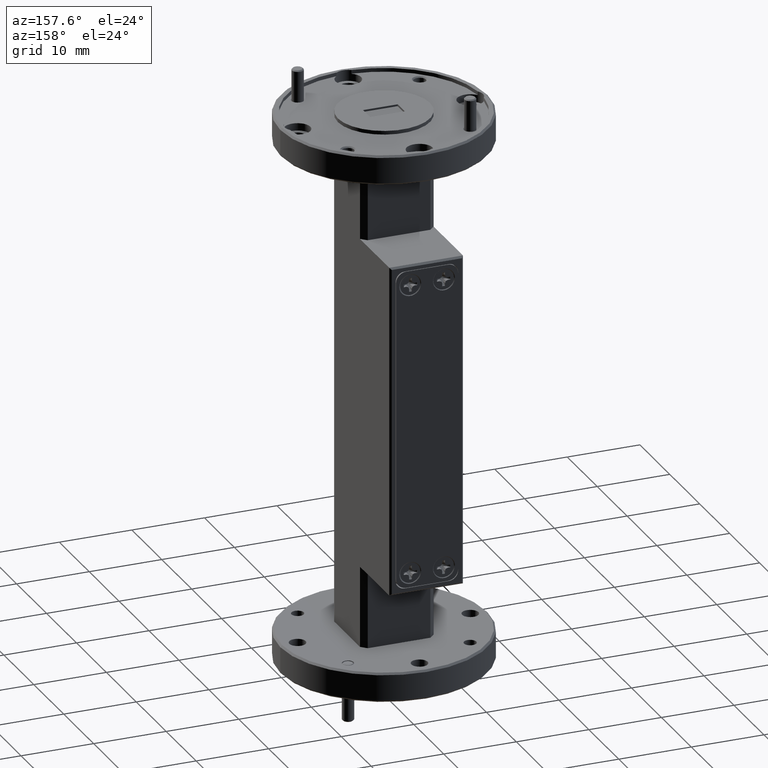
[diagram: clean part render]
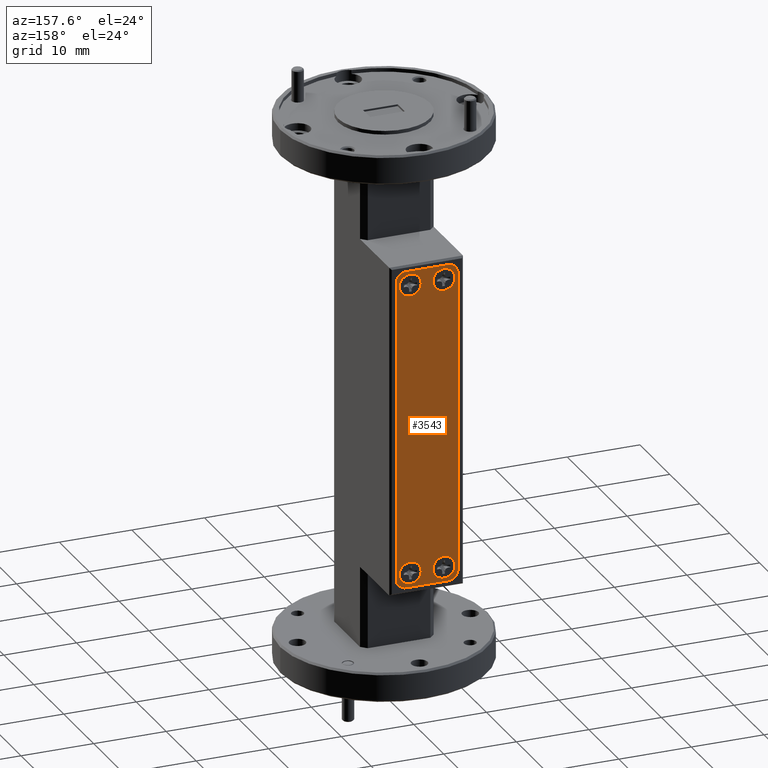
[diagram: same view with one face highlighted and labeled with its STEP entity id]
A machine part, auxiliary view. The second image highlights one B-rep face of the part: STEP entity #3543.
In plain terms, the highlighted planar face has unit normal (-0, -1, -0).
Its self-contained STEP definition (entity closure, byte-faithful):
#32 = ORIENTED_EDGE ( 'NONE', *, *, #181, .F. ) ;
#174 = DIRECTION ( 'NONE',  ( -8.683306935269171612E-17, -1.000000000000000000, -2.547280781376808225E-17 ) ) ;
#181 = EDGE_CURVE ( 'NONE', #2717, #3693, #5080, .T. ) ;
#207 = CIRCLE ( 'NONE', #7237, 0.05949999999999996264 ) ;
#353 = DIRECTION ( 'NONE',  ( 1.000000000000000000, 0.000000000000000000, 0.000000000000000000 ) ) ;
#445 = VERTEX_POINT ( 'NONE', #8191 ) ;
#451 = CARTESIAN_POINT ( 'NONE',  ( -0.1694999999999998452, 0.5649999999999999467, -0.8679999999999992166 ) ) ;
#635 = DIRECTION ( 'NONE',  ( 8.683306935269165449E-17, 1.000000000000000000, 2.547280781376808225E-17 ) ) ;
#646 = EDGE_LOOP ( 'NONE', ( #940, #6936 ) ) ;
#905 = CIRCLE ( 'NONE', #7623, 0.05949999999999997652 ) ;
#940 = ORIENTED_EDGE ( 'NONE', *, *, #1278, .F. ) ;
#1038 = CIRCLE ( 'NONE', #1995, 0.05949999999999996264 ) ;
#1073 = AXIS2_PLACEMENT_3D ( 'NONE', #8451, #6050, #4490 ) ;
#1130 = DIRECTION ( 'NONE',  ( -1.000000000000000000, 8.683306935269172844E-17, -6.635646262502135868E-33 ) ) ;
#1131 = EDGE_CURVE ( 'NONE', #445, #3798, #4850, .T. ) ;
#1148 = FACE_BOUND ( 'NONE', #2577, .T. ) ;
#1278 = EDGE_CURVE ( 'NONE', #3294, #2873, #207, .T. ) ;
#1301 = DIRECTION ( 'NONE',  ( 8.683306935269165449E-17, 1.000000000000000000, 2.547280781376808225E-17 ) ) ;
#1351 = CARTESIAN_POINT ( 'NONE',  ( 0.08999999999999976075, 0.5649999999999999467, -0.7899999999999989253 ) ) ;
#1378 = EDGE_CURVE ( 'NONE', #6566, #2669, #5796, .T. ) ;
#1410 = CARTESIAN_POINT ( 'NONE',  ( 0.08999999999999994116, 0.5649999999999999467, 0.7899999999999992584 ) ) ;
#1428 = VERTEX_POINT ( 'NONE', #5455 ) ;
#1436 = DIRECTION ( 'NONE',  ( -1.000000000000000000, 0.000000000000000000, 0.000000000000000000 ) ) ;
#1449 = EDGE_CURVE ( 'NONE', #2669, #1428, #5497, .T. ) ;
#1481 = ORIENTED_EDGE ( 'NONE', *, *, #1449, .T. ) ;
#1605 = DIRECTION ( 'NONE',  ( 8.683306935269165449E-17, 1.000000000000000000, 2.547280781376808225E-17 ) ) ;
#1623 = DIRECTION ( 'NONE',  ( 1.000000000000000000, 0.000000000000000000, 0.000000000000000000 ) ) ;
#1627 = CARTESIAN_POINT ( 'NONE',  ( -0.1144999999999999907, 0.5649999999999999467, 0.8129999999999989457 ) ) ;
#1678 = CARTESIAN_POINT ( 'NONE',  ( -0.1525000000000000522, 0.5649999999999999467, 0.7899999999999992584 ) ) ;
#1809 = ORIENTED_EDGE ( 'NONE', *, *, #9643, .T. ) ;
#1841 = AXIS2_PLACEMENT_3D ( 'NONE', #4963, #6320, #353 ) ;
#1896 = EDGE_LOOP ( 'NONE', ( #6884, #2664 ) ) ;
#1903 = VECTOR ( 'NONE', #7023, 39.37007874015748143 ) ;
#1909 = DIRECTION ( 'NONE',  ( 8.683306935269165449E-17, 1.000000000000000000, 2.547280781376808225E-17 ) ) ;
#1926 = CARTESIAN_POINT ( 'NONE',  ( 0.1494999999999997164, 0.5649999999999999467, -0.7899999999999989253 ) ) ;
#1995 = AXIS2_PLACEMENT_3D ( 'NONE', #1351, #7528, #8976 ) ;
#2341 = CARTESIAN_POINT ( 'NONE',  ( -0.1144999999999999907, 0.5649999999999999467, 0.8679999999999988836 ) ) ;
#2406 = CARTESIAN_POINT ( 'NONE',  ( 0.03049999999999997158, 0.5649999999999999467, 0.7899999999999992584 ) ) ;
#2436 = EDGE_CURVE ( 'NONE', #8279, #3526, #5668, .T. ) ;
#2562 = EDGE_LOOP ( 'NONE', ( #1809, #9579, #1481, #6681, #2907, #8749, #3451, #8618 ) ) ;
#2577 = EDGE_LOOP ( 'NONE', ( #32, #6418 ) ) ;
#2664 = ORIENTED_EDGE ( 'NONE', *, *, #7944, .F. ) ;
#2669 = VERTEX_POINT ( 'NONE', #6206 ) ;
#2717 = VERTEX_POINT ( 'NONE', #1678 ) ;
#2797 = DIRECTION ( 'NONE',  ( 8.683306935269165449E-17, 1.000000000000000000, 2.547280781376808225E-17 ) ) ;
#2873 = VERTEX_POINT ( 'NONE', #1926 ) ;
#2896 = DIRECTION ( 'NONE',  ( -1.000000000000000000, 0.000000000000000000, 0.000000000000000000 ) ) ;
#2907 = ORIENTED_EDGE ( 'NONE', *, *, #1131, .T. ) ;
#2920 = CARTESIAN_POINT ( 'NONE',  ( -0.03350000000000013384, 0.5649999999999999467, 0.7899999999999992584 ) ) ;
#2931 = DIRECTION ( 'NONE',  ( 1.000000000000000000, 0.000000000000000000, 0.000000000000000000 ) ) ;
#2981 = VERTEX_POINT ( 'NONE', #3684 ) ;
#2988 = EDGE_LOOP ( 'NONE', ( #9469, #9874 ) ) ;
#3181 = CARTESIAN_POINT ( 'NONE',  ( -0.09299999999999999933, 0.5649999999999999467, -0.7899999999999989253 ) ) ;
#3262 = FACE_BOUND ( 'NONE', #1896, .T. ) ;
#3285 = CIRCLE ( 'NONE', #1841, 0.05499999999999995864 ) ;
#3294 = VERTEX_POINT ( 'NONE', #4428 ) ;
#3451 = ORIENTED_EDGE ( 'NONE', *, *, #4185, .T. ) ;
#3453 = AXIS2_PLACEMENT_3D ( 'NONE', #4973, #1909, #4775 ) ;
#3495 = CIRCLE ( 'NONE', #9097, 0.05499999999999994477 ) ;
#3502 = DIRECTION ( 'NONE',  ( 6.635646262502133131E-33, -2.547280781376810382E-17, 1.000000000000000000 ) ) ;
#3526 = VERTEX_POINT ( 'NONE', #7721 ) ;
#3543 = ADVANCED_FACE ( 'NONE', ( #9432, #3262, #1148, #6332, #6472 ), #9327, .F. ) ;
#3605 = EDGE_CURVE ( 'NONE', #3693, #2717, #4256, .T. ) ;
#3684 = CARTESIAN_POINT ( 'NONE',  ( -0.03350000000000005057, 0.5649999999999999467, -0.7899999999999989253 ) ) ;
#3693 = VERTEX_POINT ( 'NONE', #2920 ) ;
#3757 = CARTESIAN_POINT ( 'NONE',  ( 0.1114999999999998354, 0.5649999999999999467, 0.8679999999999988836 ) ) ;
#3798 = VERTEX_POINT ( 'NONE', #4412 ) ;
#3962 = AXIS2_PLACEMENT_3D ( 'NONE', #1627, #7743, #8401 ) ;
#4185 = EDGE_CURVE ( 'NONE', #5661, #9906, #8961, .T. ) ;
#4256 = CIRCLE ( 'NONE', #3453, 0.05949999999999995570 ) ;
#4297 = CARTESIAN_POINT ( 'NONE',  ( -0.1694999999999998452, 0.5649999999999999467, -0.8129999999999991678 ) ) ;
#4411 = CARTESIAN_POINT ( 'NONE',  ( -0.1694999999999998452, 0.5649999999999999467, 0.8129999999999988347 ) ) ;
#4412 = CARTESIAN_POINT ( 'NONE',  ( -0.1144999999999999907, 0.5649999999999999467, -0.8679999999999992166 ) ) ;
#4428 = CARTESIAN_POINT ( 'NONE',  ( 0.03049999999999978423, 0.5649999999999999467, -0.7899999999999989253 ) ) ;
#4490 = DIRECTION ( 'NONE',  ( -1.000000000000000000, 0.000000000000000000, 0.000000000000000000 ) ) ;
#4719 = AXIS2_PLACEMENT_3D ( 'NONE', #1410, #1301, #9670 ) ;
#4775 = DIRECTION ( 'NONE',  ( -1.000000000000000000, 0.000000000000000000, 0.000000000000000000 ) ) ;
#4850 = LINE ( 'NONE', #7246, #8678 ) ;
#4963 = CARTESIAN_POINT ( 'NONE',  ( -0.1144999999999999907, 0.5649999999999999467, -0.8129999999999991678 ) ) ;
#4973 = CARTESIAN_POINT ( 'NONE',  ( -0.09300000000000009648, 0.5649999999999999467, 0.7899999999999992584 ) ) ;
#5080 = CIRCLE ( 'NONE', #1073, 0.05949999999999995570 ) ;
#5161 = AXIS2_PLACEMENT_3D ( 'NONE', #7501, #635, #1623 ) ;
#5178 = EDGE_CURVE ( 'NONE', #3798, #5661, #3285, .T. ) ;
#5405 = CARTESIAN_POINT ( 'NONE',  ( 0.1664999999999997038, 0.5649999999999999467, -0.8679999999999992166 ) ) ;
#5455 = CARTESIAN_POINT ( 'NONE',  ( 0.1664999999999997038, 0.5649999999999999467, -0.8129999999999991678 ) ) ;
#5497 = LINE ( 'NONE', #5405, #6602 ) ;
#5661 = VERTEX_POINT ( 'NONE', #4297 ) ;
#5668 = CIRCLE ( 'NONE', #9016, 0.05949999999999996264 ) ;
#5674 = CARTESIAN_POINT ( 'NONE',  ( 0.08999999999999994116, 0.5649999999999999467, 0.7899999999999992584 ) ) ;
#5796 = CIRCLE ( 'NONE', #5161, 0.05499999999999994477 ) ;
#6050 = DIRECTION ( 'NONE',  ( 8.683306935269165449E-17, 1.000000000000000000, 2.547280781376808225E-17 ) ) ;
#6175 = CARTESIAN_POINT ( 'NONE',  ( 0.1114999999999998354, 0.5649999999999999467, -0.8129999999999991678 ) ) ;
#6206 = CARTESIAN_POINT ( 'NONE',  ( 0.1664999999999997038, 0.5649999999999998357, 0.8129999999999985016 ) ) ;
#6320 = DIRECTION ( 'NONE',  ( 8.683306935269165449E-17, 1.000000000000000000, 2.547280781376808225E-17 ) ) ;
#6331 = LINE ( 'NONE', #7720, #1903 ) ;
#6332 = FACE_BOUND ( 'NONE', #2988, .T. ) ;
#6418 = ORIENTED_EDGE ( 'NONE', *, *, #3605, .F. ) ;
#6472 = FACE_BOUND ( 'NONE', #646, .T. ) ;
#6551 = EDGE_CURVE ( 'NONE', #2873, #3294, #1038, .T. ) ;
#6560 = EDGE_CURVE ( 'NONE', #3526, #8279, #6795, .T. ) ;
#6566 = VERTEX_POINT ( 'NONE', #3757 ) ;
#6602 = VECTOR ( 'NONE', #7801, 39.37007874015748143 ) ;
#6677 = AXIS2_PLACEMENT_3D ( 'NONE', #3181, #9616, #7132 ) ;
#6681 = ORIENTED_EDGE ( 'NONE', *, *, #9539, .T. ) ;
#6692 = CARTESIAN_POINT ( 'NONE',  ( -0.09299999999999999933, 0.5649999999999999467, -0.7899999999999989253 ) ) ;
#6795 = CIRCLE ( 'NONE', #4719, 0.05949999999999996264 ) ;
#6884 = ORIENTED_EDGE ( 'NONE', *, *, #7817, .F. ) ;
#6936 = ORIENTED_EDGE ( 'NONE', *, *, #6551, .F. ) ;
#7023 = DIRECTION ( 'NONE',  ( 1.000000000000000000, -8.683306935269172844E-17, 6.635646262502135868E-33 ) ) ;
#7067 = CARTESIAN_POINT ( 'NONE',  ( -0.001500000000000070071, 0.5649999999999999467, 1.373565839176262630E-16 ) ) ;
#7132 = DIRECTION ( 'NONE',  ( -1.000000000000000000, 0.000000000000000000, 0.000000000000000000 ) ) ;
#7230 = VERTEX_POINT ( 'NONE', #8567 ) ;
#7237 = AXIS2_PLACEMENT_3D ( 'NONE', #8846, #2797, #9749 ) ;
#7246 = CARTESIAN_POINT ( 'NONE',  ( -0.1694999999999998452, 0.5649999999999999467, -0.8679999999999992166 ) ) ;
#7501 = CARTESIAN_POINT ( 'NONE',  ( 0.1114999999999998354, 0.5649999999999999467, 0.8129999999999985016 ) ) ;
#7528 = DIRECTION ( 'NONE',  ( 8.683306935269165449E-17, 1.000000000000000000, 2.547280781376808225E-17 ) ) ;
#7623 = AXIS2_PLACEMENT_3D ( 'NONE', #6692, #9742, #2896 ) ;
#7720 = CARTESIAN_POINT ( 'NONE',  ( -0.1694999999999998452, 0.5649999999999999467, 0.8679999999999988836 ) ) ;
#7721 = CARTESIAN_POINT ( 'NONE',  ( 0.1494999999999999107, 0.5649999999999999467, 0.7899999999999992584 ) ) ;
#7743 = DIRECTION ( 'NONE',  ( 8.683306935269165449E-17, 1.000000000000000000, 2.547280781376808225E-17 ) ) ;
#7801 = DIRECTION ( 'NONE',  ( -6.635646262502133131E-33, 2.547280781376810382E-17, -1.000000000000000000 ) ) ;
#7817 = EDGE_CURVE ( 'NONE', #7230, #2981, #905, .T. ) ;
#7944 = EDGE_CURVE ( 'NONE', #2981, #7230, #9393, .T. ) ;
#8191 = CARTESIAN_POINT ( 'NONE',  ( 0.1114999999999998354, 0.5649999999999999467, -0.8679999999999992166 ) ) ;
#8279 = VERTEX_POINT ( 'NONE', #2406 ) ;
#8289 = CIRCLE ( 'NONE', #3962, 0.05499999999999995864 ) ;
#8401 = DIRECTION ( 'NONE',  ( 1.000000000000000000, 0.000000000000000000, 0.000000000000000000 ) ) ;
#8451 = CARTESIAN_POINT ( 'NONE',  ( -0.09300000000000009648, 0.5649999999999999467, 0.7899999999999992584 ) ) ;
#8567 = CARTESIAN_POINT ( 'NONE',  ( -0.1524999999999999689, 0.5649999999999999467, -0.7899999999999989253 ) ) ;
#8585 = AXIS2_PLACEMENT_3D ( 'NONE', #7067, #174, #8636 ) ;
#8618 = ORIENTED_EDGE ( 'NONE', *, *, #8737, .T. ) ;
#8636 = DIRECTION ( 'NONE',  ( 1.000000000000000000, -8.683306935269171612E-17, 6.635646262502134500E-33 ) ) ;
#8678 = VECTOR ( 'NONE', #1130, 39.37007874015748143 ) ;
#8684 = VERTEX_POINT ( 'NONE', #2341 ) ;
#8720 = DIRECTION ( 'NONE',  ( 8.683306935269165449E-17, 1.000000000000000000, 2.547280781376808225E-17 ) ) ;
#8737 = EDGE_CURVE ( 'NONE', #9906, #8684, #8289, .T. ) ;
#8749 = ORIENTED_EDGE ( 'NONE', *, *, #5178, .T. ) ;
#8846 = CARTESIAN_POINT ( 'NONE',  ( 0.08999999999999976075, 0.5649999999999999467, -0.7899999999999989253 ) ) ;
#8961 = LINE ( 'NONE', #451, #9864 ) ;
#8976 = DIRECTION ( 'NONE',  ( -1.000000000000000000, 0.000000000000000000, 0.000000000000000000 ) ) ;
#9016 = AXIS2_PLACEMENT_3D ( 'NONE', #5674, #8720, #1436 ) ;
#9097 = AXIS2_PLACEMENT_3D ( 'NONE', #6175, #1605, #2931 ) ;
#9327 = PLANE ( 'NONE',  #8585 ) ;
#9393 = CIRCLE ( 'NONE', #6677, 0.05949999999999997652 ) ;
#9432 = FACE_OUTER_BOUND ( 'NONE', #2562, .T. ) ;
#9469 = ORIENTED_EDGE ( 'NONE', *, *, #2436, .F. ) ;
#9539 = EDGE_CURVE ( 'NONE', #1428, #445, #3495, .T. ) ;
#9579 = ORIENTED_EDGE ( 'NONE', *, *, #1378, .T. ) ;
#9616 = DIRECTION ( 'NONE',  ( 8.683306935269165449E-17, 1.000000000000000000, 2.547280781376808225E-17 ) ) ;
#9643 = EDGE_CURVE ( 'NONE', #8684, #6566, #6331, .T. ) ;
#9670 = DIRECTION ( 'NONE',  ( -1.000000000000000000, 0.000000000000000000, 0.000000000000000000 ) ) ;
#9742 = DIRECTION ( 'NONE',  ( 8.683306935269165449E-17, 1.000000000000000000, 2.547280781376808225E-17 ) ) ;
#9749 = DIRECTION ( 'NONE',  ( -1.000000000000000000, 0.000000000000000000, 0.000000000000000000 ) ) ;
#9864 = VECTOR ( 'NONE', #3502, 39.37007874015748143 ) ;
#9874 = ORIENTED_EDGE ( 'NONE', *, *, #6560, .F. ) ;
#9906 = VERTEX_POINT ( 'NONE', #4411 ) ;